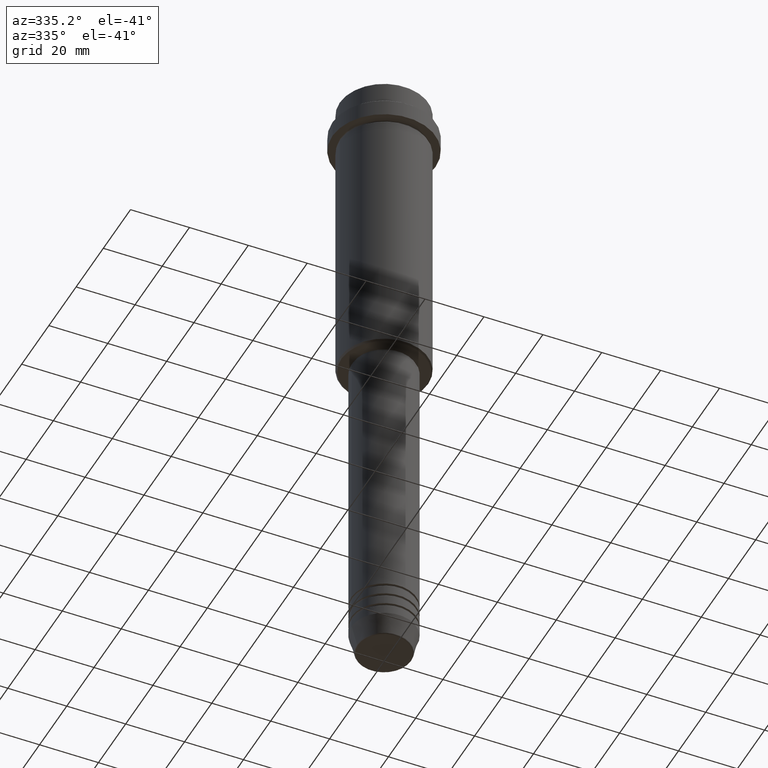
[diagram: clean part render]
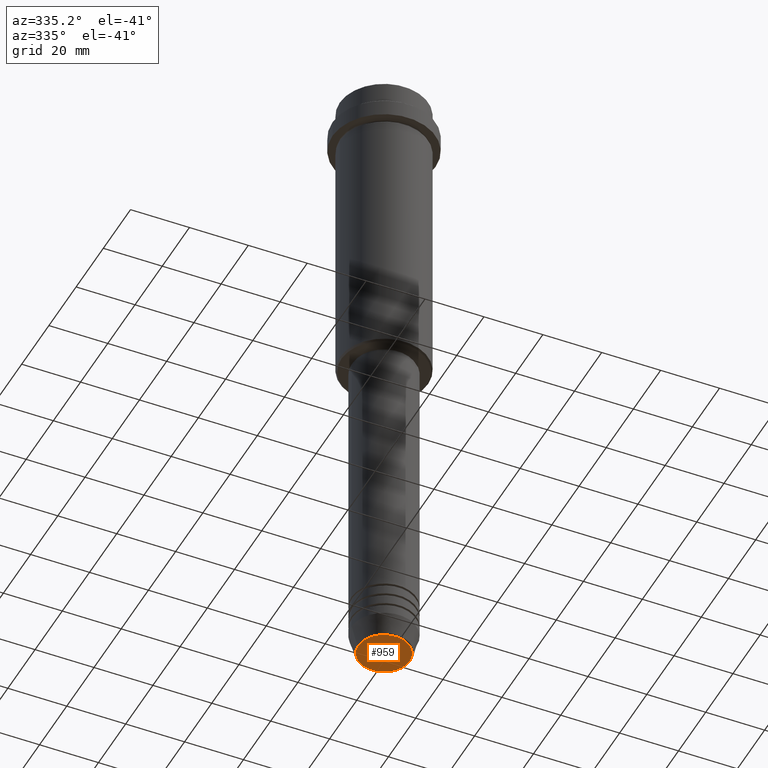
[diagram: same view with one face highlighted and labeled with its STEP entity id]
A machine part, auxiliary view. The second image highlights one B-rep face of the part: STEP entity #959.
In plain terms, the highlighted planar face has unit normal (0, -0, 1).
Its self-contained STEP definition (entity closure, byte-faithful):
#6 = CARTESIAN_POINT ( 'NONE',  ( -8.740692158992661831, 1.099999016768740048E-15, -220.0000000000000284 ) ) ;
#56 = VERTEX_POINT ( 'NONE', #359 ) ;
#79 = ORIENTED_EDGE ( 'NONE', *, *, #1291, .T. ) ;
#251 = DIRECTION ( 'NONE',  ( 1.000000000000000000, 0.000000000000000000, 0.000000000000000000 ) ) ;
#256 = AXIS2_PLACEMENT_3D ( 'NONE', #989, #1001, #661 ) ;
#299 = AXIS2_PLACEMENT_3D ( 'NONE', #1225, #664, #251 ) ;
#359 = CARTESIAN_POINT ( 'NONE',  ( 8.740692158992661831, 0.000000000000000000, -220.0000000000000284 ) ) ;
#440 = EDGE_CURVE ( 'NONE', #56, #595, #1404, .T. ) ;
#542 = PLANE ( 'NONE',  #256 ) ;
#595 = VERTEX_POINT ( 'NONE', #6 ) ;
#606 = ORIENTED_EDGE ( 'NONE', *, *, #440, .T. ) ;
#661 = DIRECTION ( 'NONE',  ( 1.000000000000000000, 0.000000000000000000, 0.000000000000000000 ) ) ;
#664 = DIRECTION ( 'NONE',  ( 0.000000000000000000, 0.000000000000000000, -1.000000000000000000 ) ) ;
#750 = DIRECTION ( 'NONE',  ( 1.000000000000000000, 0.000000000000000000, 0.000000000000000000 ) ) ;
#852 = CARTESIAN_POINT ( 'NONE',  ( 0.000000000000000000, 0.000000000000000000, -220.0000000000000284 ) ) ;
#947 = EDGE_LOOP ( 'NONE', ( #606, #79 ) ) ;
#959 = ADVANCED_FACE ( 'NONE', ( #1208 ), #542, .F. ) ;
#989 = CARTESIAN_POINT ( 'NONE',  ( 0.000000000000000000, 0.000000000000000000, -220.0000000000000284 ) ) ;
#1001 = DIRECTION ( 'NONE',  ( 0.000000000000000000, -0.000000000000000000, 1.000000000000000000 ) ) ;
#1170 = AXIS2_PLACEMENT_3D ( 'NONE', #852, #1284, #750 ) ;
#1208 = FACE_OUTER_BOUND ( 'NONE', #947, .T. ) ;
#1213 = CIRCLE ( 'NONE', #1170, 8.740692158992661831 ) ;
#1225 = CARTESIAN_POINT ( 'NONE',  ( 0.000000000000000000, 0.000000000000000000, -220.0000000000000284 ) ) ;
#1284 = DIRECTION ( 'NONE',  ( 0.000000000000000000, 0.000000000000000000, -1.000000000000000000 ) ) ;
#1291 = EDGE_CURVE ( 'NONE', #595, #56, #1213, .T. ) ;
#1404 = CIRCLE ( 'NONE', #299, 8.740692158992661831 ) ;